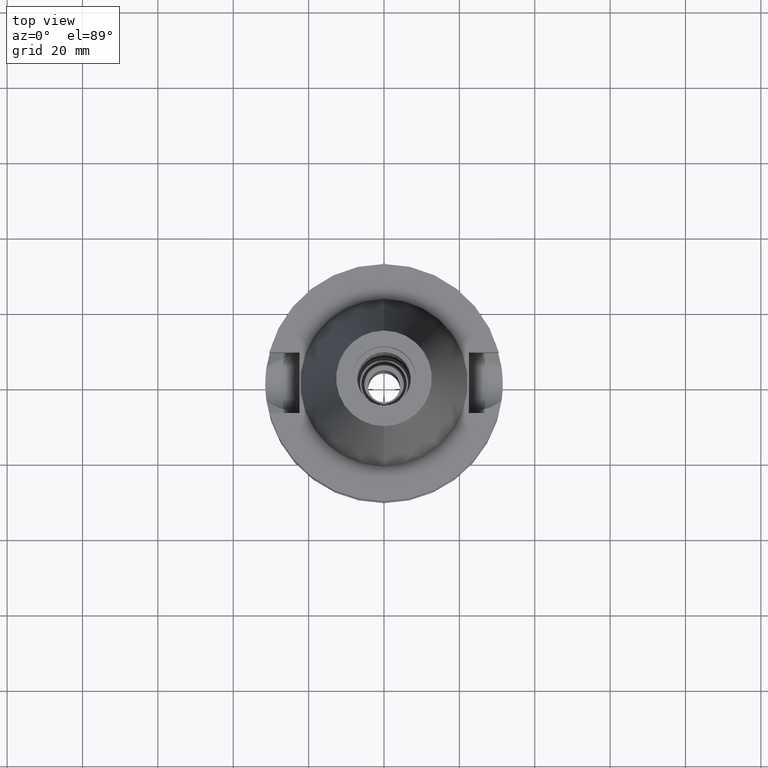
[diagram: clean part render]
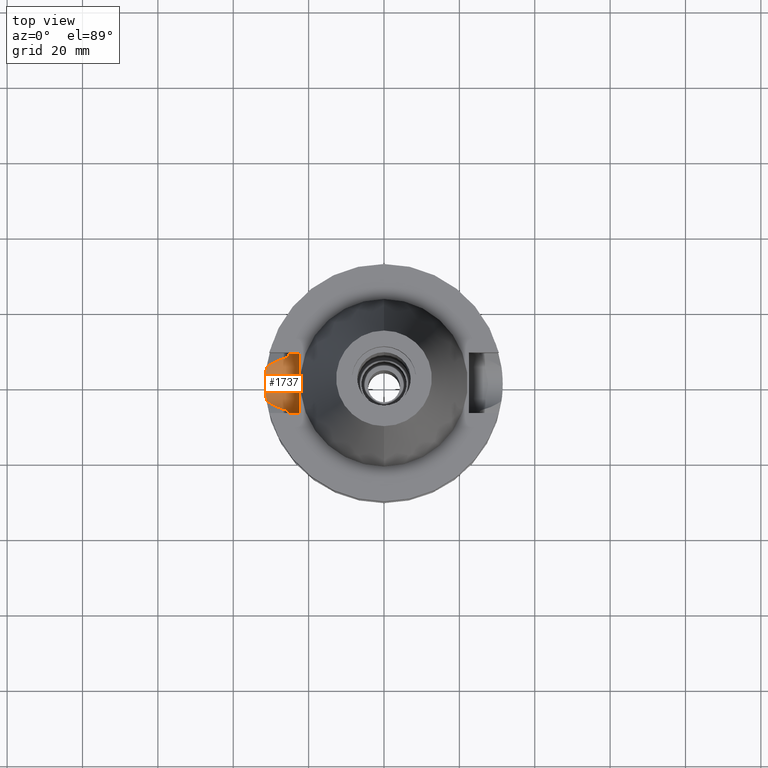
[diagram: same view with one face highlighted and labeled with its STEP entity id]
A machine part, top view. The second image highlights one B-rep face of the part: STEP entity #1737.
In plain terms, the highlighted cylindrical surface (edge-blend (fillet) strip) has radius 8.05 mm, axis along (-1, 0, 0).
Its self-contained STEP definition (entity closure, byte-faithful):
#177=CARTESIAN_POINT('',(-2.25E1,1.807578675541E-14,-1.495E1));
#178=DIRECTION('',(1.E0,0.E0,0.E0));
#179=DIRECTION('',(0.E0,-1.E0,1.919789379228E-14));
#180=AXIS2_PLACEMENT_3D('',#177,#178,#179);
#185=CARTESIAN_POINT('',(-2.25E1,1.807578675541E-14,-1.495E1));
#186=DIRECTION('',(1.E0,0.E0,0.E0));
#187=DIRECTION('',(0.E0,0.E0,-1.E0));
#188=AXIS2_PLACEMENT_3D('',#185,#186,#187);
#241=CARTESIAN_POINT('',(-2.553175183775E1,-7.097862220093E0,
-1.874774300139E1));
#242=CARTESIAN_POINT('',(-2.547271918594E1,-7.310208835141E0,
-1.835087385675E1));
#243=CARTESIAN_POINT('',(-2.536983558540E1,-7.660512735290E0,
-1.753882711767E1));
#244=CARTESIAN_POINT('',(-2.527033461079E1,-7.979621508938E0,
-1.625425445451E1));
#245=CARTESIAN_POINT('',(-2.524772266958E1,-8.05E0,-1.538828038445E1));
#246=CARTESIAN_POINT('',(-2.524772266958E1,-8.05E0,-1.495E1));
#361=CARTESIAN_POINT('',(-2.524772266958E1,8.05E0,-1.495E1));
#362=CARTESIAN_POINT('',(-2.524772266958E1,8.05E0,-1.538834950002E1));
#363=CARTESIAN_POINT('',(-2.527034219221E1,7.979597850829E0,-1.625441489125E1));
#364=CARTESIAN_POINT('',(-2.536984959230E1,7.660466517108E0,-1.753895015723E1));
#365=CARTESIAN_POINT('',(-2.547272650759E1,7.310182498380E0,-1.835092307933E1));
#366=CARTESIAN_POINT('',(-2.553175183775E1,7.097862220093E0,-1.874774300139E1));
#444=DIRECTION('',(1.E0,1.551559937893E-14,-3.620306521750E-14));
#445=VECTOR('',#444,2.747722669580E0);
#446=CARTESIAN_POINT('',(-2.524772266958E1,8.05E0,-1.495E1));
#447=LINE('',#446,#445);
#451=DIRECTION('',(-1.E0,1.616208268639E-14,-1.034373291929E-14));
#452=VECTOR('',#451,2.747722669580E0);
#453=CARTESIAN_POINT('',(-2.25E1,-8.05E0,-1.495E1));
#454=LINE('',#453,#452);
#458=CARTESIAN_POINT('',(-3.117899877609E1,-4.485536235554E0,
-2.163449434733E1));
#459=CARTESIAN_POINT('',(-3.081789465733E1,-4.759494608339E0,
-2.145065842134E1));
#460=CARTESIAN_POINT('',(-3.002921561282E1,-5.291934221289E0,
-2.104896170728E1));
#461=CARTESIAN_POINT('',(-2.847422893501E1,-6.083732485446E0,
-2.025541026320E1));
#462=CARTESIAN_POINT('',(-2.705379838977E1,-6.640454537296E0,
-1.952879526380E1));
#463=CARTESIAN_POINT('',(-2.604018176388E1,-6.958103545698E0,
-1.900894756804E1));
#464=CARTESIAN_POINT('',(-2.553175183775E1,-7.097862220093E0,
-1.874774300139E1));
#554=CARTESIAN_POINT('',(-2.553175183775E1,7.097862220093E0,-1.874774300139E1));
#555=CARTESIAN_POINT('',(-2.604277188640E1,6.957391565402E0,-1.901027823682E1));
#556=CARTESIAN_POINT('',(-2.700859498821E1,6.654801622270E0,-1.950560026746E1));
#557=CARTESIAN_POINT('',(-2.828195750863E1,6.156446389115E0,-2.015703503465E1));
#558=CARTESIAN_POINT('',(-2.939827963786E1,5.623268311459E0,-2.072705948674E1));
#559=CARTESIAN_POINT('',(-3.036619756882E1,5.065586471364E0,-2.122058569271E1));
#560=CARTESIAN_POINT('',(-3.092307906139E1,4.679694498947E0,-2.150420716619E1));
#561=CARTESIAN_POINT('',(-3.117899877609E1,4.485536235554E0,-2.163449434733E1));
#609=CARTESIAN_POINT('',(-3.117899877609E1,4.485536235554E0,-2.163449434733E1));
#610=CARTESIAN_POINT('',(-3.124432755678E1,4.031435350805E0,-2.193921238093E1));
#611=CARTESIAN_POINT('',(-3.135992226601E1,3.086731852890E0,-2.244039260076E1));
#612=CARTESIAN_POINT('',(-3.147352449813E1,1.574442090063E0,-2.289734580016E1));
#613=CARTESIAN_POINT('',(-3.151358048718E1,-1.471319844634E-2,
-2.305267495637E1));
#614=CARTESIAN_POINT('',(-3.147213491181E1,-1.599532263832E0,
-2.289189784277E1));
#615=CARTESIAN_POINT('',(-3.135823014352E1,-3.101891738607E0,
-2.243328986459E1));
#616=CARTESIAN_POINT('',(-3.124356931013E1,-4.036705929449E0,
-2.193567563301E1));
#617=CARTESIAN_POINT('',(-3.117899877609E1,-4.485536235554E0,
-2.163449434733E1));
#1319=VERTEX_POINT('',#458);
#1320=VERTEX_POINT('',#464);
#1323=VERTEX_POINT('',#554);
#1324=VERTEX_POINT('',#561);
#1327=VERTEX_POINT('',#361);
#1328=CARTESIAN_POINT('',(-2.25E1,8.05E0,-1.495E1));
#1329=VERTEX_POINT('',#1328);
#1330=CARTESIAN_POINT('',(-2.25E1,1.856870709207E-14,-2.3E1));
#1331=VERTEX_POINT('',#1330);
#1332=CARTESIAN_POINT('',(-2.25E1,-8.05E0,-1.495E1));
#1333=VERTEX_POINT('',#1332);
#1334=CARTESIAN_POINT('',(-2.524772266958E1,-8.05E0,-1.495E1));
#1335=VERTEX_POINT('',#1334);
#1718=CARTESIAN_POINT('',(-2.25E1,1.807578675541E-14,-1.495E1));
#1719=DIRECTION('',(-1.E0,0.E0,0.E0));
#1720=DIRECTION('',(0.E0,0.E0,-1.E0));
#1721=AXIS2_PLACEMENT_3D('',#1718,#1719,#1720);
#1722=CYLINDRICAL_SURFACE('',#1721,8.05E0);
#1724=ORIENTED_EDGE('',*,*,#1723,.F.);
#1726=ORIENTED_EDGE('',*,*,#1725,.F.);
#1728=ORIENTED_EDGE('',*,*,#1727,.F.);
#1729=ORIENTED_EDGE('',*,*,#1655,.F.);
#1730=ORIENTED_EDGE('',*,*,#1683,.T.);
#1731=ORIENTED_EDGE('',*,*,#1518,.F.);
#1732=ORIENTED_EDGE('',*,*,#1516,.F.);
#1733=ORIENTED_EDGE('',*,*,#1532,.T.);
#1734=ORIENTED_EDGE('',*,*,#1561,.F.);
#1735=EDGE_LOOP('',(#1724,#1726,#1728,#1729,#1730,#1731,#1732,#1733,#1734));
#1736=FACE_OUTER_BOUND('',#1735,.F.);
#181=CIRCLE('',#180,8.05E0);
#189=CIRCLE('',#188,8.05E0);
#247=B_SPLINE_CURVE_WITH_KNOTS('',3,(#241,#242,#243,#244,#245,#246),
.UNSPECIFIED.,.F.,.F.,(4,1,1,4),(0.E0,3.333333333333E-1,6.666666666667E-1,1.E0),
.UNSPECIFIED.);
#367=B_SPLINE_CURVE_WITH_KNOTS('',3,(#361,#362,#363,#364,#365,#366),
.UNSPECIFIED.,.F.,.F.,(4,1,1,4),(0.E0,3.333333333333E-1,6.666666666667E-1,1.E0),
.UNSPECIFIED.);
#465=B_SPLINE_CURVE_WITH_KNOTS('',3,(#458,#459,#460,#461,#462,#463,#464),
.UNSPECIFIED.,.F.,.F.,(4,1,1,1,4),(0.E0,2.5E-1,5.E-1,7.5E-1,1.E0),
.UNSPECIFIED.);
#562=B_SPLINE_CURVE_WITH_KNOTS('',3,(#554,#555,#556,#557,#558,#559,#560,#561),
.UNSPECIFIED.,.F.,.F.,(4,1,1,1,1,4),(0.E0,2.E-1,4.E-1,6.E-1,8.E-1,1.E0),
.UNSPECIFIED.);
#618=B_SPLINE_CURVE_WITH_KNOTS('',3,(#609,#610,#611,#612,#613,#614,#615,#616,
#617),.UNSPECIFIED.,.F.,.F.,(4,1,1,1,1,1,4),(0.E0,1.666666666667E-1,
3.333333333333E-1,5.E-1,6.666666666667E-1,8.333333333333E-1,1.E0),
.UNSPECIFIED.);
#1516=EDGE_CURVE('',#1333,#1331,#181,.T.);
#1518=EDGE_CURVE('',#1331,#1329,#189,.T.);
#1532=EDGE_CURVE('',#1333,#1335,#454,.T.);
#1561=EDGE_CURVE('',#1320,#1335,#247,.T.);
#1655=EDGE_CURVE('',#1327,#1323,#367,.T.);
#1683=EDGE_CURVE('',#1327,#1329,#447,.T.);
#1723=EDGE_CURVE('',#1319,#1320,#465,.T.);
#1725=EDGE_CURVE('',#1324,#1319,#618,.T.);
#1727=EDGE_CURVE('',#1323,#1324,#562,.T.);
#1737=ADVANCED_FACE('',(#1736),#1722,.F.);